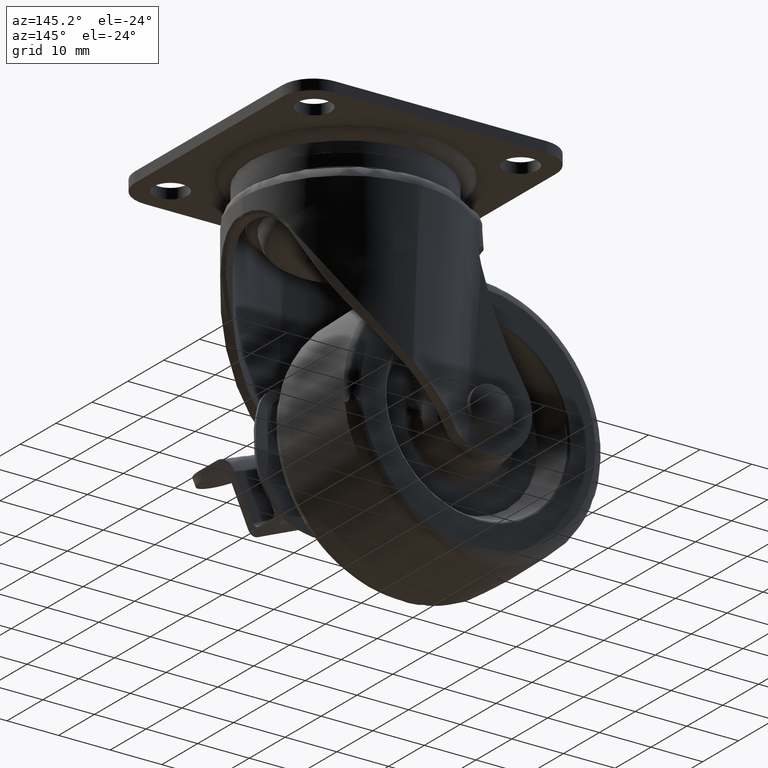
[diagram: clean part render]
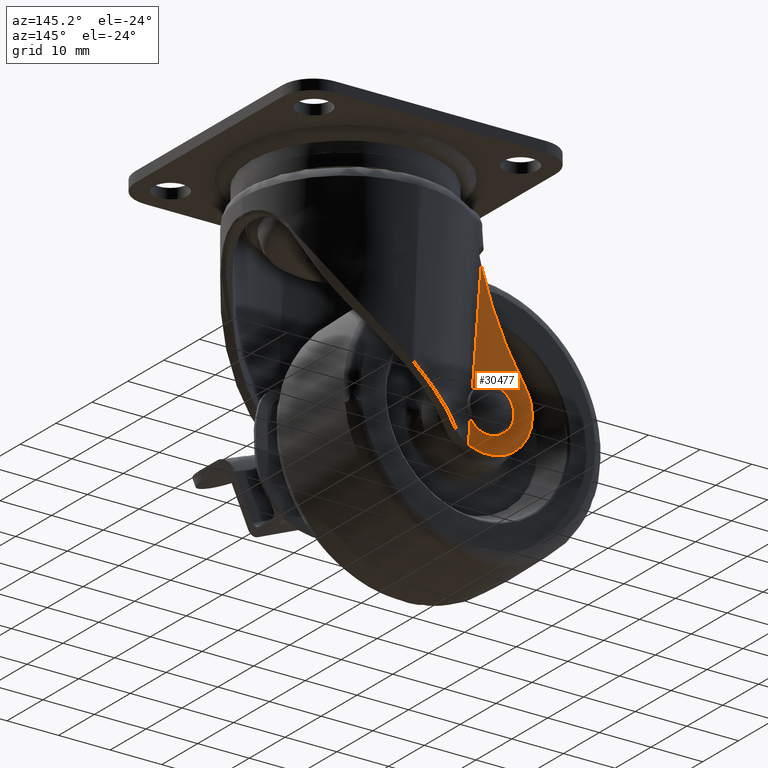
[diagram: same view with one face highlighted and labeled with its STEP entity id]
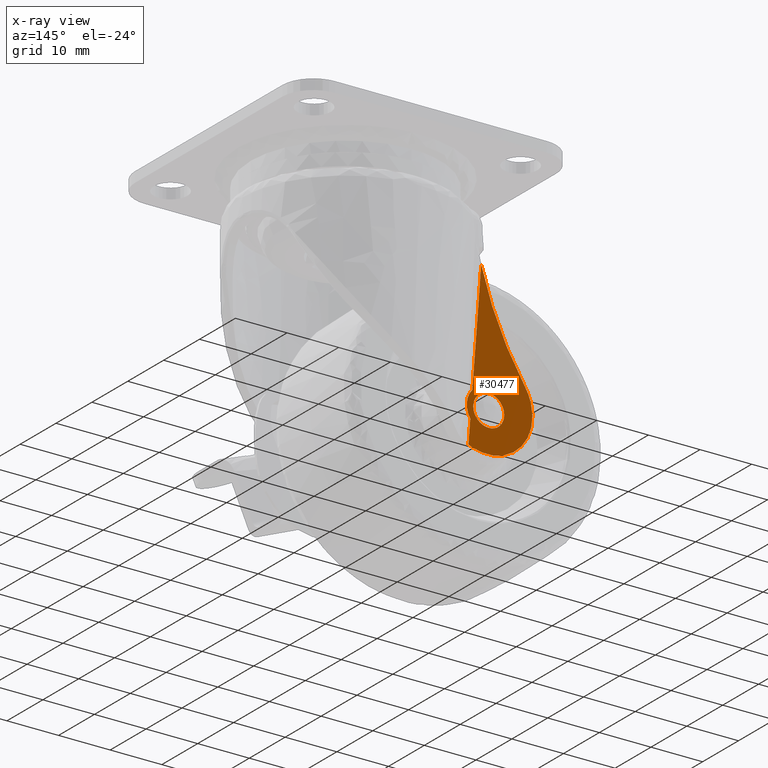
[diagram: x-ray of the same camera — body ghosted, the highlighted face saturated]
A machine part, auxiliary view. The second image highlights one B-rep face of the part: STEP entity #30477.
The next image is the same camera in x-ray: the body ghosted, the highlighted face saturated — about 0% of this face is hidden behind the body in this view.
In plain terms, the highlighted face is a freeform B-spline surface patch.
Its self-contained STEP definition (entity closure, byte-faithful):
#18980=CARTESIAN_POINT('',(-20.290667276063129,14.0,-41.062476366331182));
#18981=VERTEX_POINT('',#18980);
#18987=CARTESIAN_POINT('',(-18.0,14.0,-39.999702999999997));
#18988=VERTEX_POINT('',#18987);
#18989=CARTESIAN_POINT('',(-20.290667276063129,14.0,-41.062476366331182));
#18990=CARTESIAN_POINT('',(-20.097905503368029,13.999999999999989,-40.834336926220928));
#18991=CARTESIAN_POINT('',(-19.746734660525139,14.000000000000020,-40.526988778261007));
#18992=CARTESIAN_POINT('',(-18.977080775815111,14.0,-40.117638425019123));
#18993=CARTESIAN_POINT('',(-18.407358273430798,14.0,-39.999184977064409));
#18994=CARTESIAN_POINT('',(-18.0,14.0,-39.999702999999997));
#18995=B_SPLINE_CURVE_WITH_KNOTS('',3,(#18989,#18990,#18991,#18992,#18993,#18994),.UNSPECIFIED.,.F.,.U.,(4,1,1,4),(0.000000030252632,0.895980678798579,1.384694504412764,2.606484986007955),.UNSPECIFIED.);
#18996=EDGE_CURVE('',#18981,#18988,#18995,.T.);
#18998=CARTESIAN_POINT('',(-15.000000000000989,14.0,-42.999705433661418));
#18999=VERTEX_POINT('',#18998);
#19000=CARTESIAN_POINT('',(-18.0,14.0,-39.999702999999997));
#19001=CARTESIAN_POINT('',(-17.631795902367450,13.999999999999989,-39.999419007742873));
#19002=CARTESIAN_POINT('',(-17.067532224706891,14.0,-40.104931669771851));
#19003=CARTESIAN_POINT('',(-16.384657342724189,13.999999999999989,-40.448833019660682));
#19004=CARTESIAN_POINT('',(-15.879121746088650,14.000000000000041,-40.843281631138453));
#19005=CARTESIAN_POINT('',(-15.471260247816829,13.999999999999879,-41.340293780729581));
#19006=CARTESIAN_POINT('',(-15.105306095659261,14.000000000000149,-42.067253259063683));
#19007=CARTESIAN_POINT('',(-14.999642573871780,13.999999999999890,-42.631489009396113));
#19008=CARTESIAN_POINT('',(-15.000000000000989,14.0,-42.999705433661418));
#19009=B_SPLINE_CURVE_WITH_KNOTS('',3,(#19000,#19001,#19002,#19003,#19004,#19005,#19006,#19007,#19008),.UNSPECIFIED.,.F.,.U.,(4,1,1,1,1,1,4),(0.000000162309085,1.104493634964632,1.693562309699939,2.282641062937854,3.018944360145506,3.608015758171730,4.712508604695827),.UNSPECIFIED.);
#19010=EDGE_CURVE('',#18988,#18999,#19009,.T.);
#19012=CARTESIAN_POINT('',(-18.0,14.0,-45.999702999999997));
#19013=VERTEX_POINT('',#19012);
#19014=CARTESIAN_POINT('',(-15.000000000000989,14.0,-42.999705433661418));
#19015=CARTESIAN_POINT('',(-14.999707258841539,14.000000000000011,-43.367916132603497));
#19016=CARTESIAN_POINT('',(-15.105268686113609,14.0,-43.932147995106149));
#19017=CARTESIAN_POINT('',(-15.493405906489610,14.000000000000041,-44.703196500300308));
#19018=CARTESIAN_POINT('',(-15.947090944183691,13.999999999999931,-45.229244202061132));
#19019=CARTESIAN_POINT('',(-16.511773400309409,14.000000000000110,-45.626762943634930));
#19020=CARTESIAN_POINT('',(-17.165611055049801,13.999999999999920,-45.916683606614413));
#19021=CARTESIAN_POINT('',(-17.680913810506809,14.000000000000030,-45.999862868301548));
#19022=CARTESIAN_POINT('',(-18.0,14.0,-45.999702999999997));
#19023=B_SPLINE_CURVE_WITH_KNOTS('',3,(#19014,#19015,#19016,#19017,#19018,#19019,#19020,#19021,#19022),.UNSPECIFIED.,.F.,.U.,(4,1,1,1,1,1,4),(0.000000165653685,1.104492994524724,1.693561327583123,2.577110439045223,3.166198034698224,3.755288808023229,4.712505861323729),.UNSPECIFIED.);
#19024=EDGE_CURVE('',#18999,#19013,#19023,.T.);
#19026=CARTESIAN_POINT('',(-20.065063358441890,14.0,-45.175825625251427));
#19027=VERTEX_POINT('',#19026);
#19028=CARTESIAN_POINT('',(-18.0,14.0,-45.999702999999997));
#19029=CARTESIAN_POINT('',(-18.260985406424869,14.0,-45.999760008467348));
#19030=CARTESIAN_POINT('',(-18.806665625784738,14.000000000000011,-45.928103991971177));
#19031=CARTESIAN_POINT('',(-19.512046031592320,14.000000000000011,-45.627105789375648));
#19032=CARTESIAN_POINT('',(-19.910186918212521,14.000000000000041,-45.322818152207333));
#19033=CARTESIAN_POINT('',(-20.065063358441890,14.0,-45.175825625251427));
#19034=B_SPLINE_CURVE_WITH_KNOTS('',3,(#19028,#19029,#19030,#19031,#19032,#19033),.UNSPECIFIED.,.F.,.U.,(4,1,1,4),(0.000000044315680,0.782971179636178,1.637101519672385,2.277707920481838),.UNSPECIFIED.);
#19035=EDGE_CURVE('',#19013,#19027,#19034,.T.);
#19118=CARTESIAN_POINT('',(-20.999999999999009,14.0,-42.999700566338603));
#19119=VERTEX_POINT('',#19118);
#19120=CARTESIAN_POINT('',(-20.065063358441890,14.0,-45.175825625251427));
#19121=CARTESIAN_POINT('',(-20.304384822977418,14.0,-44.948995225297153));
#19122=CARTESIAN_POINT('',(-20.629392087535901,14.000000000000011,-44.517975917237742));
#19123=CARTESIAN_POINT('',(-20.932274408835109,13.999999999999980,-43.760505582113773));
#19124=CARTESIAN_POINT('',(-21.000102756311289,13.999999999999980,-43.278691683453253));
#19125=CARTESIAN_POINT('',(-20.999999999999009,14.0,-42.999700566338603));
#19126=B_SPLINE_CURVE_WITH_KNOTS('',3,(#19120,#19121,#19122,#19123,#19124,#19125),.UNSPECIFIED.,.F.,.U.,(4,1,1,4),(0.000000038491807,0.989148881986098,1.597829272250050,2.434801662014795),.UNSPECIFIED.);
#19127=EDGE_CURVE('',#19027,#19119,#19126,.T.);
#19129=CARTESIAN_POINT('',(-20.999999999999009,14.0,-42.999700566338603));
#19130=CARTESIAN_POINT('',(-21.000545814175450,13.999999999999989,-42.582788018386658));
#19131=CARTESIAN_POINT('',(-20.851173757673038,14.0,-41.881327059396789));
#19132=CARTESIAN_POINT('',(-20.474889930057991,14.000000000000011,-41.280177325258798));
#19133=CARTESIAN_POINT('',(-20.290667276063129,14.0,-41.062476366331182));
#19134=B_SPLINE_CURVE_WITH_KNOTS('',3,(#19129,#19130,#19131,#19132,#19133),.UNSPECIFIED.,.F.,.U.,(4,1,4),(0.000000042969295,1.250437235727705,2.106024281585576),.UNSPECIFIED.);
#19135=EDGE_CURVE('',#19119,#18981,#19134,.T.);
#21724=CARTESIAN_POINT('',(-14.825458707189799,14.0,-40.173966356177253));
#21725=VERTEX_POINT('',#21724);
#21726=CARTESIAN_POINT('',(-14.427703982084740,14.0,-45.302136747230698));
#21727=VERTEX_POINT('',#21726);
#21728=CARTESIAN_POINT('',(-14.825458707189799,14.0,-40.173966356177253));
#21729=CARTESIAN_POINT('',(-14.538341831396350,14.000000000000011,-40.496218707961390));
#21730=CARTESIAN_POINT('',(-14.111213359553100,13.999999999999980,-41.155932736132478));
#21731=CARTESIAN_POINT('',(-13.750400639388410,14.000000000000020,-42.318707474552973));
#21732=CARTESIAN_POINT('',(-13.720097190996940,13.999999999999989,-43.453509275387617));
#21733=CARTESIAN_POINT('',(-13.983128193070730,13.999999999999959,-44.493292789850770));
#21734=CARTESIAN_POINT('',(-14.271806245206820,14.000000000000099,-45.060310657567527));
#21735=CARTESIAN_POINT('',(-14.427703982084740,14.0,-45.302136747230698));
#21736=B_SPLINE_CURVE_WITH_KNOTS('',3,(#21728,#21729,#21730,#21731,#21732,#21733,#21734,#21735),.UNSPECIFIED.,.F.,.U.,(4,1,1,1,1,4),(0.000000094701023,1.294792870561325,2.330659538767641,3.625409476910772,4.661268859655184,5.524452153016481),.UNSPECIFIED.);
#21737=EDGE_CURVE('',#21725,#21727,#21736,.T.);
#29332=CARTESIAN_POINT('',(-14.069150555114261,14.0,-49.924892812077303));
#29333=VERTEX_POINT('',#29332);
#29334=CARTESIAN_POINT('',(-14.427703982084740,14.0,-45.302136747230698));
#29335=CARTESIAN_POINT('',(-14.069150555114261,14.0,-49.924892812077303));
#29336=QUASI_UNIFORM_CURVE('',1,(#29334,#29335),.UNSPECIFIED.,.F.,.U.);
#29337=EDGE_CURVE('',#21727,#29333,#29336,.T.);
#29340=CARTESIAN_POINT('',(-16.549373770838049,14.0,-17.947881716310000));
#29341=VERTEX_POINT('',#29340);
#29342=CARTESIAN_POINT('',(-16.549373770838049,14.0,-17.947881716310000));
#29343=CARTESIAN_POINT('',(-14.825458707189799,14.0,-40.173966356177253));
#29344=QUASI_UNIFORM_CURVE('',1,(#29342,#29343),.UNSPECIFIED.,.F.,.U.);
#29345=EDGE_CURVE('',#29341,#21725,#29344,.T.);
#30165=CARTESIAN_POINT('',(-25.008377406252698,14.0,-37.023370460246653));
#30166=VERTEX_POINT('',#30165);
#30167=CARTESIAN_POINT('',(-16.549373770838049,14.0,-17.947881716310000));
#30168=CARTESIAN_POINT('',(-17.225178341183572,14.0,-20.592658261528310));
#30169=CARTESIAN_POINT('',(-18.685411177079949,13.999999999999980,-25.065509815436432));
#30170=CARTESIAN_POINT('',(-21.588070237982269,14.000000000000030,-31.430802760550691));
#30171=CARTESIAN_POINT('',(-23.742962102276149,13.999999999999989,-35.111164691819802));
#30172=CARTESIAN_POINT('',(-25.008377406252698,14.0,-37.023370460246653));
#30173=B_SPLINE_CURVE_WITH_KNOTS('',3,(#30167,#30168,#30169,#30170,#30171,#30172),.UNSPECIFIED.,.F.,.U.,(4,1,1,4),(2.145306E-009,8.189252655922925,14.085507320818930,20.964480602779389),.UNSPECIFIED.);
#30174=EDGE_CURVE('',#29341,#30166,#30173,.T.);
#30205=CARTESIAN_POINT('',(-14.579077689634200,14.0,-50.119038075290099));
#30206=VERTEX_POINT('',#30205);
#30207=CARTESIAN_POINT('',(-14.579077689634200,14.0,-50.119038075290099));
#30208=CARTESIAN_POINT('',(-15.118526329044000,13.999999999999980,-50.321459050085473));
#30209=CARTESIAN_POINT('',(-16.125471427570741,14.000000000000050,-50.589900167853983));
#30210=CARTESIAN_POINT('',(-17.536483968931059,13.999999999999980,-50.708490096888589));
#30211=CARTESIAN_POINT('',(-18.833306434583310,14.000000000000030,-50.632481579309477));
#30212=CARTESIAN_POINT('',(-20.135862759391170,13.999999999999950,-50.367132296238239));
#30213=CARTESIAN_POINT('',(-21.757542001920338,13.999999999999989,-49.751446886000728));
#30214=CARTESIAN_POINT('',(-23.362910340487929,14.000000000000179,-48.701718725055620));
#30215=CARTESIAN_POINT('',(-24.588883670196662,13.999999999999620,-47.388421340373952));
#30216=CARTESIAN_POINT('',(-25.426334366031821,14.000000000000229,-46.107982043892292));
#30217=CARTESIAN_POINT('',(-25.989321883803779,13.999999999999980,-44.870740384099172));
#30218=CARTESIAN_POINT('',(-26.331080332422751,14.000000000000041,-43.586119168030379));
#30219=CARTESIAN_POINT('',(-26.486288716460290,14.000000000000030,-42.325847292030467));
#30220=CARTESIAN_POINT('',(-26.464009971764010,13.999999999999851,-40.823285321563773));
#30221=CARTESIAN_POINT('',(-26.062289620105620,14.000000000000361,-38.951276795180988));
#30222=CARTESIAN_POINT('',(-25.421872910292311,13.999999999999750,-37.647920289759362));
#30223=CARTESIAN_POINT('',(-25.008377406252698,14.0,-37.023370460246653));
#30224=B_SPLINE_CURVE_WITH_KNOTS('',3,(#30207,#30208,#30209,#30210,#30211,#30212,#30213,#30214,#30215,#30216,#30217,#30218,#30219,#30220,#30221,#30222,#30223),.UNSPECIFIED.,.F.,.U.,(4,1,1,1,1,1,1,1,1,1,1,1,1,1,4),(0.000000298710731,1.728525168410720,3.111322143718606,4.234902486184076,5.617741715985975,7.087020518240927,9.420529629821361,11.321879719454520,12.445436894570941,14.001118855411610,15.383941077313160,16.421078579439289,17.803911092257088,19.878204055633621,22.125244062638970),.UNSPECIFIED.);
#30225=EDGE_CURVE('',#30206,#30166,#30224,.T.);
#30451=CARTESIAN_POINT('',(-27.104961788457668,14.0,-52.311965807248292));
#30452=CARTESIAN_POINT('',(-27.104961788457668,14.0,-16.313054478204290));
#30453=CARTESIAN_POINT('',(-13.114927463596130,14.0,-52.311965807248299));
#30454=CARTESIAN_POINT('',(-13.114927463596130,14.0,-16.313054478204290));
#30455=B_SPLINE_SURFACE_WITH_KNOTS('',1,1,((#30451,#30453),(#30452,#30454)),.UNSPECIFIED.,.F.,.F.,.U.,(2,2),(2,2),(0.0,35.998911329044013),(0.0,13.990034324861540),.UNSPECIFIED.);
#30456=ORIENTED_EDGE('',*,*,#29345,.T.);
#30457=ORIENTED_EDGE('',*,*,#21737,.T.);
#30458=ORIENTED_EDGE('',*,*,#29337,.T.);
#30459=CARTESIAN_POINT('',(-14.069150555114261,14.0,-49.924892812077303));
#30460=CARTESIAN_POINT('',(-14.323635220084681,14.000000000000011,-50.023223291895832));
#30461=CARTESIAN_POINT('',(-14.579077689634200,14.0,-50.119038075290099));
#30462=B_SPLINE_CURVE_WITH_KNOTS('',2,(#30459,#30460,#30461),.UNSPECIFIED.,.F.,.U.,(3,3),(-2.720046E-015,0.545638789672909),.UNSPECIFIED.);
#30463=EDGE_CURVE('',#29333,#30206,#30462,.T.);
#30464=ORIENTED_EDGE('',*,*,#30463,.T.);
#30465=ORIENTED_EDGE('',*,*,#30225,.T.);
#30466=ORIENTED_EDGE('',*,*,#30174,.F.);
#30467=EDGE_LOOP('',(#30456,#30457,#30458,#30464,#30465,#30466));
#30468=FACE_OUTER_BOUND('',#30467,.T.);
#30469=ORIENTED_EDGE('',*,*,#19010,.F.);
#30470=ORIENTED_EDGE('',*,*,#18996,.F.);
#30471=ORIENTED_EDGE('',*,*,#19135,.F.);
#30472=ORIENTED_EDGE('',*,*,#19127,.F.);
#30473=ORIENTED_EDGE('',*,*,#19035,.F.);
#30474=ORIENTED_EDGE('',*,*,#19024,.F.);
#30475=EDGE_LOOP('',(#30469,#30470,#30471,#30472,#30473,#30474));
#30476=FACE_BOUND('',#30475,.T.);
#30477=ADVANCED_FACE('',(#30468,#30476),#30455,.T.);